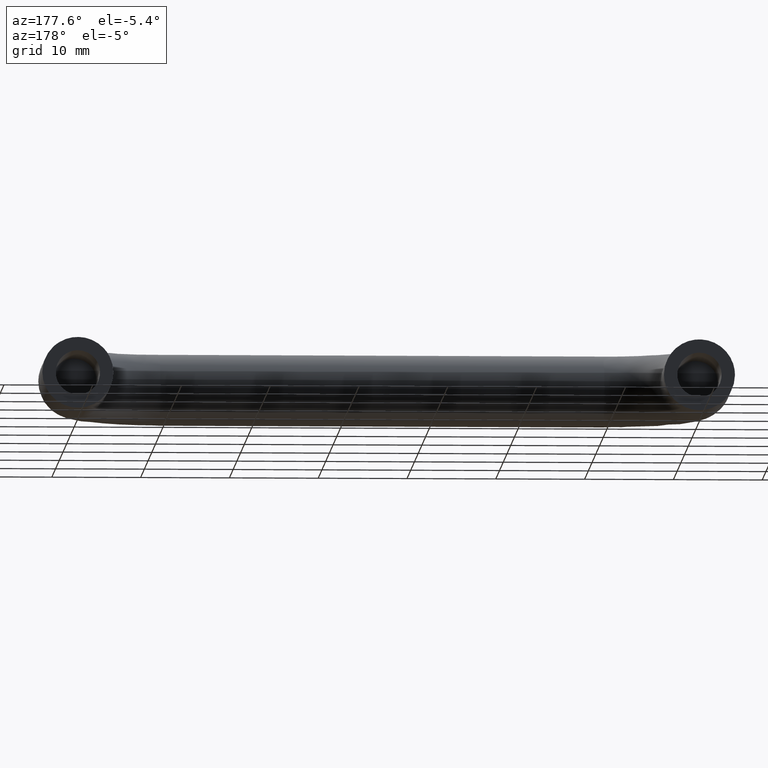
[diagram: clean part render]
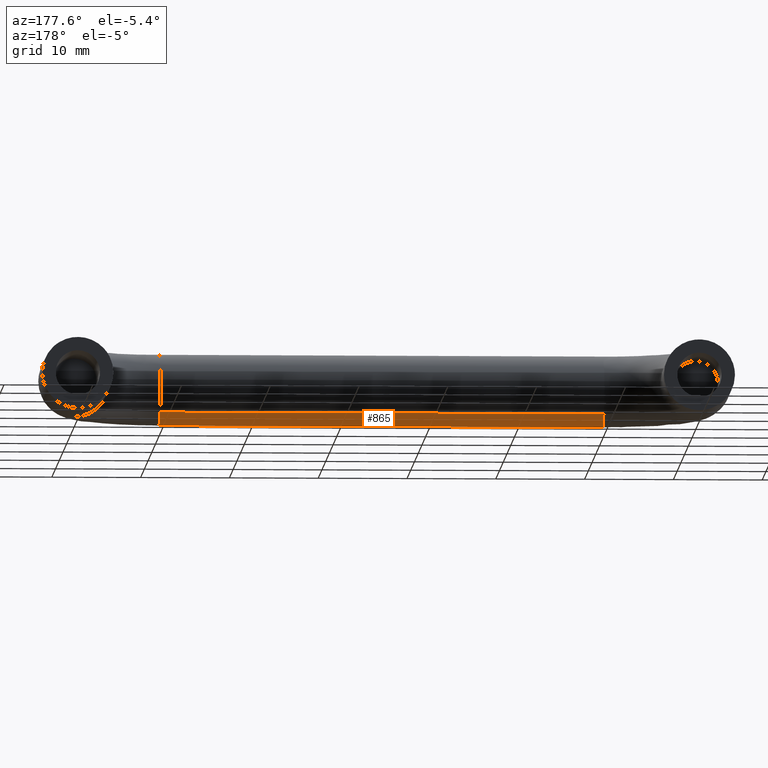
[diagram: same view with one face highlighted and labeled with its STEP entity id]
A machine part, auxiliary view. The second image highlights one B-rep face of the part: STEP entity #865.
In plain terms, the highlighted face is a freeform B-spline surface patch.
Its self-contained STEP definition (entity closure, byte-faithful):
#642=CARTESIAN_POINT('',(59.999995410626042,-18.085144373023830,-2.739273019229506));
#643=VERTEX_POINT('',#642);
#659=CARTESIAN_POINT('',(10.000003123664021,-18.085144822978489,-2.739273498026444));
#660=VERTEX_POINT('',#659);
#661=CARTESIAN_POINT('',(10.000003123664021,-18.085144822978489,-2.739273498026444));
#662=CARTESIAN_POINT('',(59.999995410626042,-18.085144373023830,-2.739273019229506));
#663=QUASI_UNIFORM_CURVE('',1,(#661,#662),.UNSPECIFIED.,.F.,.U.);
#664=EDGE_CURVE('',#660,#643,#663,.T.);
#713=CARTESIAN_POINT('',(10.000002846891970,-23.901497828615462,-2.753417939677727));
#714=VERTEX_POINT('',#713);
#728=CARTESIAN_POINT('',(59.999995540924871,-23.901497832919951,-2.753417935140964));
#729=VERTEX_POINT('',#728);
#730=CARTESIAN_POINT('',(10.000002846891970,-23.901497828615462,-2.753417939677727));
#731=CARTESIAN_POINT('',(59.999995540924871,-23.901497832919951,-2.753417935140964));
#732=QUASI_UNIFORM_CURVE('',1,(#730,#731),.UNSPECIFIED.,.F.,.U.);
#733=EDGE_CURVE('',#714,#729,#732,.T.);
#783=CARTESIAN_POINT('',(8.749999999407830,-23.901497484049148,-2.753418302775015));
#784=CARTESIAN_POINT('',(8.749999999407830,-21.148079181274131,-5.654915786824165));
#785=CARTESIAN_POINT('',(8.749999999407830,-18.246581697224990,-2.901497484049150));
#786=CARTESIAN_POINT('',(8.749999999407830,-18.163542085799133,-2.822695835172240));
#787=CARTESIAN_POINT('',(8.749999999407832,-18.085145242384502,-2.739273944315588));
#788=CARTESIAN_POINT('',(61.281250000268081,-23.901497484049141,-2.753418302775015));
#789=CARTESIAN_POINT('',(61.281250000268081,-21.148079181274131,-5.654915786824165));
#790=CARTESIAN_POINT('',(61.281250000268081,-18.246581697224979,-2.901497484049150));
#791=CARTESIAN_POINT('',(61.281250000268088,-18.163542085799122,-2.822695835172240));
#792=CARTESIAN_POINT('',(61.281250000268088,-18.085145242384492,-2.739273944315588));
#800=(BOUNDED_SURFACE()B_SPLINE_SURFACE(2,1,((#783,#788),(#784,#789),(#785,#790),(#786,#791),(#787,#792)),.UNSPECIFIED.,.F.,.F.,.U.)B_SPLINE_SURFACE_WITH_KNOTS((3,2,3),(2,2),(0.0,6.627416997969515,6.892513677888296),(0.0,52.531250000860247),.UNSPECIFIED.)GEOMETRIC_REPRESENTATION_ITEM()RATIONAL_B_SPLINE_SURFACE(((1.0,1.0),(0.707106781186548,0.707106781186548),(1.0,1.0),(0.988284271247462,0.988284271247462),(0.977505800795127,0.977505800795127)))REPRESENTATION_ITEM('')SURFACE());
#801=CARTESIAN_POINT('',(59.999990571734777,-20.899485182958191,-3.998736897012089));
#802=VERTEX_POINT('',#801);
#803=CARTESIAN_POINT('',(59.999990571734791,-20.899485182958191,-3.998736897012088));
#804=CARTESIAN_POINT('',(59.999992590856003,-19.229287516682106,-3.956753736536658));
#805=CARTESIAN_POINT('',(59.999995410626028,-18.085144373023823,-2.739273019229505));
#813=(BOUNDED_CURVE()B_SPLINE_CURVE(2,(#803,#804,#805),.UNSPECIFIED.,.F.,.U.)B_SPLINE_CURVE_WITH_KNOTS((3,3),(0.254419864726559,0.379684538877428),.UNSPECIFIED.)CURVE()GEOMETRIC_REPRESENTATION_ITEM()RATIONAL_B_SPLINE_CURVE((0.989826708070981,0.848259171506251,0.853759071032117))REPRESENTATION_ITEM(''));
#814=EDGE_CURVE('',#802,#643,#813,.T.);
#815=ORIENTED_EDGE('',*,*,#814,.F.);
#816=CARTESIAN_POINT('',(59.999995540924871,-23.901497832919944,-2.753417935140964));
#817=CARTESIAN_POINT('',(59.999992714095086,-22.718536224237177,-3.999999999997181));
#818=CARTESIAN_POINT('',(59.999990688743168,-21.000000000000089,-3.999999999996398));
#819=CARTESIAN_POINT('',(59.999990629503799,-20.949734655190763,-3.999999999996376));
#820=CARTESIAN_POINT('',(59.999990571734784,-20.899485182958188,-3.998736897012089));
#828=(BOUNDED_CURVE()B_SPLINE_CURVE(2,(#816,#817,#818,#819,#820),.UNSPECIFIED.,.F.,.U.)B_SPLINE_CURVE_WITH_KNOTS((3,2,3),(0.121049488416020,0.250000000000000,0.254419864726559),.UNSPECIFIED.)CURVE()GEOMETRIC_REPRESENTATION_ITEM()RATIONAL_B_SPLINE_CURVE((0.853699664201436,0.848925078378107,1.0,0.994821806374072,0.989826708070981))REPRESENTATION_ITEM(''));
#829=EDGE_CURVE('',#729,#802,#828,.T.);
#830=ORIENTED_EDGE('',*,*,#829,.F.);
#831=ORIENTED_EDGE('',*,*,#733,.F.);
#832=CARTESIAN_POINT('',(10.000006212245570,-20.721064804414830,-3.990262542322404));
#833=VERTEX_POINT('',#832);
#834=CARTESIAN_POINT('',(10.000002846891972,-23.901497828615462,-2.753417939677727));
#835=CARTESIAN_POINT('',(10.000004668199013,-22.718536216829577,-3.999999999999757));
#836=CARTESIAN_POINT('',(10.000006002695139,-21.000000000000021,-3.999999999999687));
#837=CARTESIAN_POINT('',(10.000006111127989,-20.860362437850977,-3.999999999999681));
#838=CARTESIAN_POINT('',(10.000006212245566,-20.721064804414834,-3.990262542322405));
#846=(BOUNDED_CURVE()B_SPLINE_CURVE(2,(#834,#835,#836,#837,#838),.UNSPECIFIED.,.F.,.U.)B_SPLINE_CURVE_WITH_KNOTS((3,2,3),(0.121049488887875,0.250000000000000,0.262166407824162),.UNSPECIFIED.)CURVE()GEOMETRIC_REPRESENTATION_ITEM()RATIONAL_B_SPLINE_CURVE((0.853699664166494,0.848925078930919,1.0,0.985746166603936,0.972879676809105))REPRESENTATION_ITEM(''));
#847=EDGE_CURVE('',#714,#833,#846,.T.);
#848=ORIENTED_EDGE('',*,*,#847,.T.);
#849=CARTESIAN_POINT('',(10.000006212245566,-20.721064804414830,-3.990262542322405));
#850=CARTESIAN_POINT('',(10.000004907577436,-19.158101908533990,-3.881005229944941));
#851=CARTESIAN_POINT('',(10.000003123664017,-18.085144822978492,-2.739273498026444));
#859=(BOUNDED_CURVE()B_SPLINE_CURVE(2,(#849,#850,#851),.UNSPECIFIED.,.F.,.U.)B_SPLINE_CURVE_WITH_KNOTS((3,3),(0.262166407824162,0.379684537194316),.UNSPECIFIED.)CURVE()GEOMETRIC_REPRESENTATION_ITEM()RATIONAL_B_SPLINE_CURVE((0.972879676809105,0.848599294784940,0.853759070884319))REPRESENTATION_ITEM(''));
#860=EDGE_CURVE('',#833,#660,#859,.T.);
#861=ORIENTED_EDGE('',*,*,#860,.T.);
#862=ORIENTED_EDGE('',*,*,#664,.T.);
#863=EDGE_LOOP('',(#815,#830,#831,#848,#861,#862));
#864=FACE_OUTER_BOUND('',#863,.T.);
#865=ADVANCED_FACE('',(#864),#800,.T.);